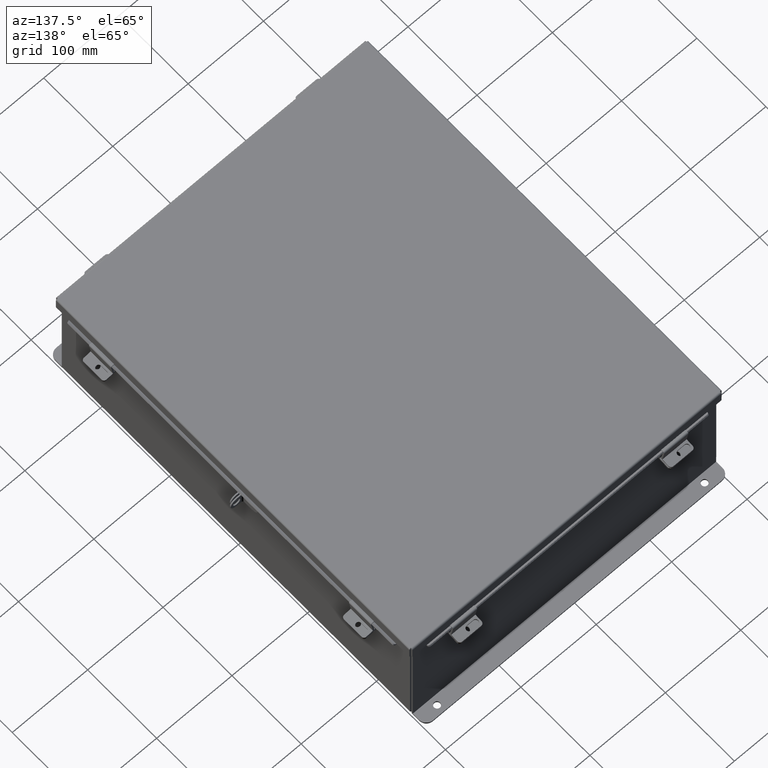
[diagram: clean part render]
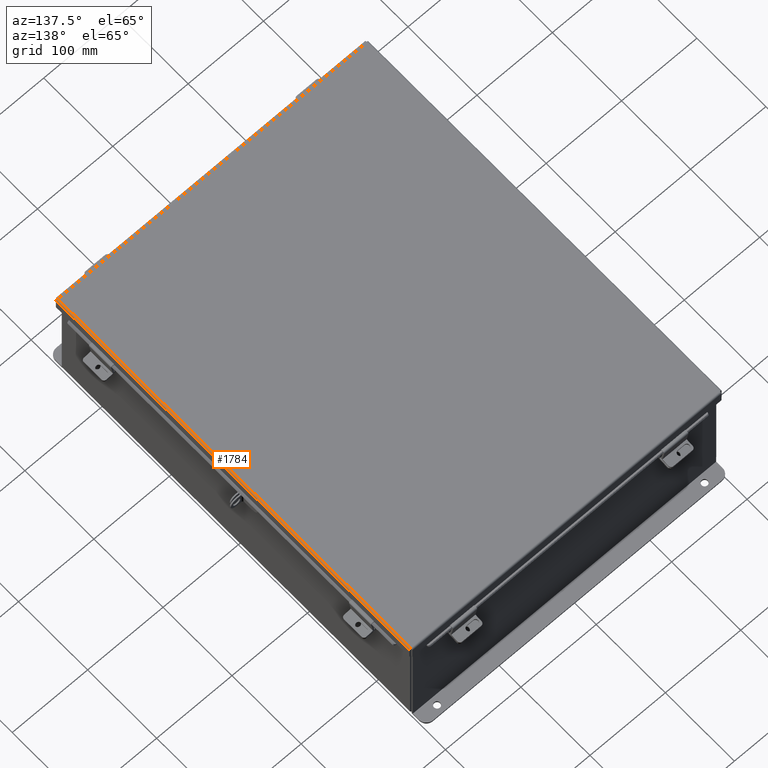
[diagram: same view with one face highlighted and labeled with its STEP entity id]
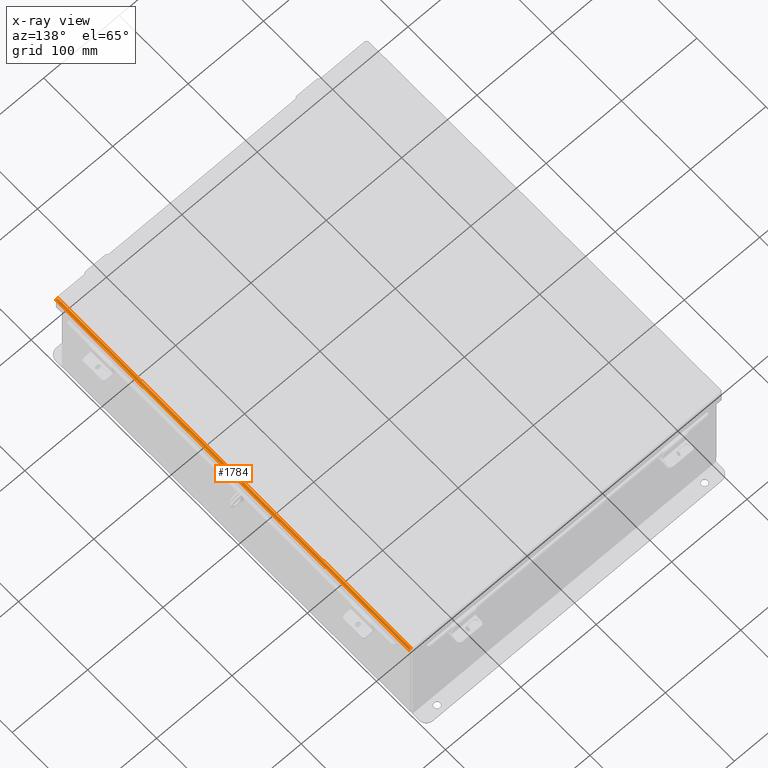
[diagram: x-ray of the same camera — body ghosted, the highlighted face saturated]
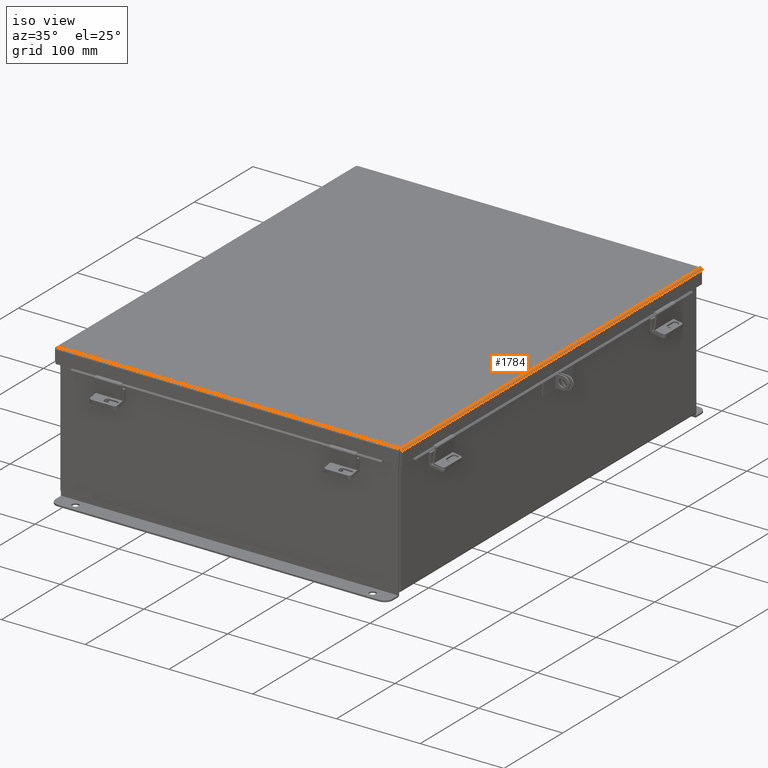
[diagram: same view with one face highlighted and labeled with its STEP entity id]
A machine part, auxiliary view. The second image highlights one B-rep face of the part: STEP entity #1784.
The next image is the same camera in x-ray: the body ghosted, the highlighted face saturated — about 0% of this face is hidden behind the body in this view.
A second angle (iso view) of the same face is appended — the face is thin or edge-on in the first view.
In plain terms, the highlighted cylindrical surface (edge-blend (fillet) strip) has radius 2.2276 mm, axis along (-0, -1, -0).
Its self-contained STEP definition (entity closure, byte-faithful):
#375 = EDGE_CURVE ( 'NONE', #13295, #20542, #1792, .T. ) ;
#1535 = ORIENTED_EDGE ( 'NONE', *, *, #12981, .T. ) ;
#1784 = ADVANCED_FACE ( 'NONE', ( #4408 ), #7920, .T. ) ;
#1792 = B_SPLINE_CURVE_WITH_KNOTS ( 'NONE', 3,
 ( #6260, #11001, #5690, #20757, #17682, #5245, #14311, #6372, #21284, #5219 ),
 .UNSPECIFIED., .F., .F.,
 ( 4, 2, 2, 2, 4 ),
 ( 0.0000000000000000000, 0.2500000000000000000, 0.5000000000000000000, 0.7500000000000000000, 1.000000000000000000 ),
 .UNSPECIFIED. ) ;
#3347 = CARTESIAN_POINT ( 'NONE',  ( -8.156250000000033800, 10.07447893218813400, 0.01300000000000010700 ) ) ;
#4408 = FACE_OUTER_BOUND ( 'NONE', #4887, .T. ) ;
#4887 = EDGE_LOOP ( 'NONE', ( #20575, #22164, #1535, #16988 ) ) ;
#5219 = CARTESIAN_POINT ( 'NONE',  ( -8.068550000000033900, -10.06854999999999800, -0.07470000000000015500 ) ) ;
#5245 = CARTESIAN_POINT ( 'NONE',  ( -8.122445747341833700, -10.07102038841172100, -0.05713078207832069500 ) ) ;
#5690 = CARTESIAN_POINT ( 'NONE',  ( -8.153967403743845200, -10.07349077682344600, -0.009955289458309115500 ) ) ;
#6260 = CARTESIAN_POINT ( 'NONE',  ( -8.156250000000033800, -10.07447893218813400, 0.01299999999999901400 ) ) ;
#6371 = VERTEX_POINT ( 'NONE', #3347 ) ;
#6372 = CARTESIAN_POINT ( 'NONE',  ( -8.091505289458345000, -10.06953815536469100, -0.07241740374381157300 ) ) ;
#7557 = CARTESIAN_POINT ( 'NONE',  ( -8.068550000000033900, -10.07447893218813400, -0.07470000000000015500 ) ) ;
#7751 = DIRECTION ( 'NONE',  ( -3.166671605124525800E-030, -1.000000000000000000, -1.853823127269377700E-029 ) ) ;
#7920 = CYLINDRICAL_SURFACE ( 'NONE', #8140, 0.08770000000000026400 ) ;
#7937 = CARTESIAN_POINT ( 'NONE',  ( -8.080029903155027800, 10.06904407768234600, -0.07470000000000029400 ) ) ;
#8140 = AXIS2_PLACEMENT_3D ( 'NONE', #20310, #7751, #19150 ) ;
#8205 = EDGE_CURVE ( 'NONE', #20542, #19558, #21953, .T. ) ;
#8309 = CARTESIAN_POINT ( 'NONE',  ( -8.153967403743848800, 10.07349077682344600, -0.009955289458309117200 ) ) ;
#8718 = CARTESIAN_POINT ( 'NONE',  ( -8.068550000000033900, -10.06854999999999800, -0.07470000000000015500 ) ) ;
#11001 = CARTESIAN_POINT ( 'NONE',  ( -8.156250000000033800, -10.07398485450579000, 0.001520096845007062900 ) ) ;
#11835 = EDGE_CURVE ( 'NONE', #19558, #6371, #17165, .T. ) ;
#12389 = VECTOR ( 'NONE', #13994, 39.37007874015748100 ) ;
#12776 = VECTOR ( 'NONE', #13354, 39.37007874015748100 ) ;
#12981 = EDGE_CURVE ( 'NONE', #13295, #6371, #18035, .T. ) ;
#13295 = VERTEX_POINT ( 'NONE', #16271 ) ;
#13354 = DIRECTION ( 'NONE',  ( 3.166671605124525800E-030, 1.000000000000000000, 1.853823127269377700E-029 ) ) ;
#13994 = DIRECTION ( 'NONE',  ( 3.166671605124525800E-030, 1.000000000000000000, 1.853823127269377700E-029 ) ) ;
#14311 = CARTESIAN_POINT ( 'NONE',  ( -8.112717384578564500, -10.07052631072937700, -0.06363106625866871100 ) ) ;
#14569 = CARTESIAN_POINT ( 'NONE',  ( -8.156250000000033800, 10.15624999999999800, 0.01300000000000010700 ) ) ;
#16271 = CARTESIAN_POINT ( 'NONE',  ( -8.156250000000033800, -10.07447893218813400, 0.01299999999999901400 ) ) ;
#16988 = ORIENTED_EDGE ( 'NONE', *, *, #11835, .F. ) ;
#17165 = B_SPLINE_CURVE_WITH_KNOTS ( 'NONE', 3,
 ( #22348, #7937, #21556, #21144, #20684, #18745, #19354, #8309, #19413, #19634 ),
 .UNSPECIFIED., .F., .F.,
 ( 4, 2, 2, 2, 4 ),
 ( 0.0000000000000000000, 0.2500000000000000000, 0.5000000000000000000, 0.7500000000000000000, 1.000000000000000000 ),
 .UNSPECIFIED. ) ;
#17682 = CARTESIAN_POINT ( 'NONE',  ( -8.138680782078354900, -10.07200854377641100, -0.04089574734180033400 ) ) ;
#18035 = LINE ( 'NONE', #14569, #12389 ) ;
#18357 = CARTESIAN_POINT ( 'NONE',  ( -8.068550000000033900, 10.06854999999999800, -0.07470000000000015500 ) ) ;
#18745 = CARTESIAN_POINT ( 'NONE',  ( -8.138680782078353100, 10.07200854377641100, -0.04089574734180034100 ) ) ;
#19150 = DIRECTION ( 'NONE',  ( -1.000000000000000000, 0.0000000000000000000, -3.577373637655407700E-015 ) ) ;
#19354 = CARTESIAN_POINT ( 'NONE',  ( -8.145181066258704300, 10.07250262145875500, -0.03116738457852815500 ) ) ;
#19413 = CARTESIAN_POINT ( 'NONE',  ( -8.156250000000035500, 10.07398485450578800, 0.001520096845007063500 ) ) ;
#19558 = VERTEX_POINT ( 'NONE', #18357 ) ;
#19634 = CARTESIAN_POINT ( 'NONE',  ( -8.156250000000033800, 10.07447893218813400, 0.01300000000000010700 ) ) ;
#20310 = CARTESIAN_POINT ( 'NONE',  ( -8.068550000000033900, -10.07447893218813400, 0.01300000000000010700 ) ) ;
#20542 = VERTEX_POINT ( 'NONE', #8718 ) ;
#20575 = ORIENTED_EDGE ( 'NONE', *, *, #8205, .F. ) ;
#20684 = CARTESIAN_POINT ( 'NONE',  ( -8.122445747341835400, 10.07102038841172000, -0.05713078207832070900 ) ) ;
#20757 = CARTESIAN_POINT ( 'NONE',  ( -8.145181066258702500, -10.07250262145874900, -0.03116738457852814100 ) ) ;
#21144 = CARTESIAN_POINT ( 'NONE',  ( -8.112717384578562700, 10.07052631072937700, -0.06363106625866869800 ) ) ;
#21284 = CARTESIAN_POINT ( 'NONE',  ( -8.080029903155029600, -10.06904407768234400, -0.07470000000000032200 ) ) ;
#21556 = CARTESIAN_POINT ( 'NONE',  ( -8.091505289458346800, 10.06953815536469100, -0.07241740374381158700 ) ) ;
#21953 = LINE ( 'NONE', #7557, #12776 ) ;
#22164 = ORIENTED_EDGE ( 'NONE', *, *, #375, .F. ) ;
#22348 = CARTESIAN_POINT ( 'NONE',  ( -8.068550000000033900, 10.06854999999999800, -0.07470000000000015500 ) ) ;